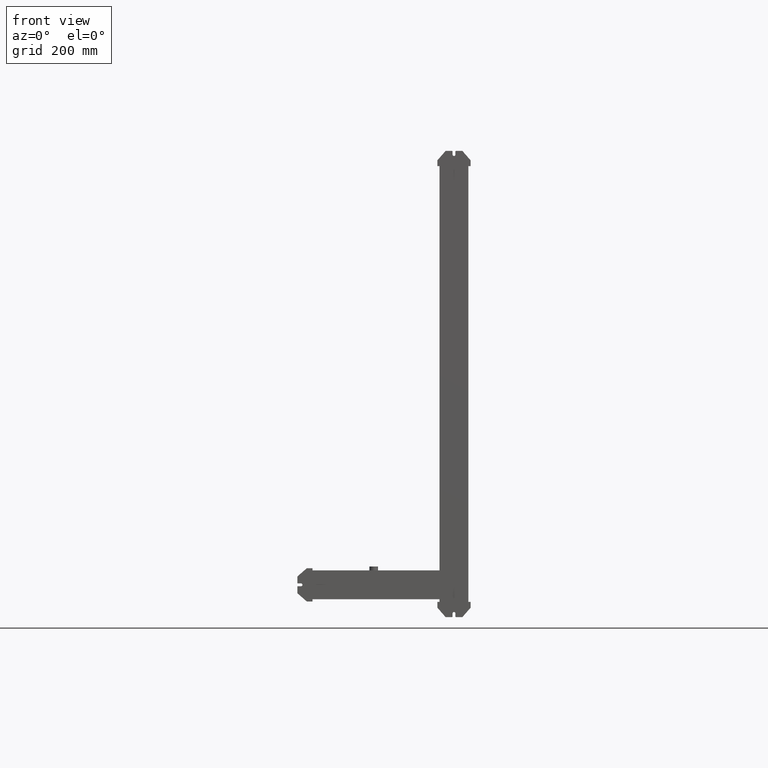
[diagram: clean part render]
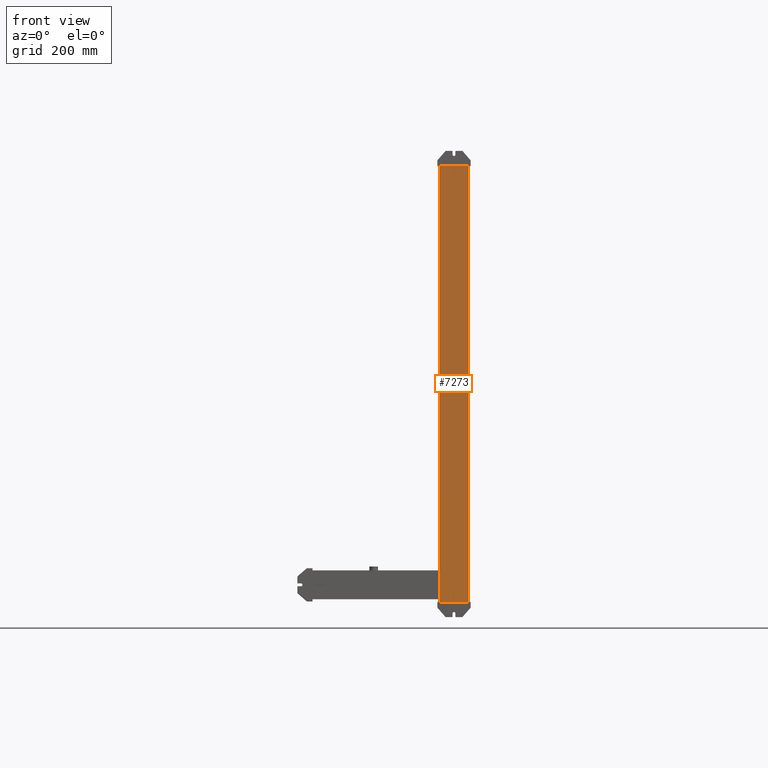
[diagram: same view with one face highlighted and labeled with its STEP entity id]
A machine part, front view. The second image highlights one B-rep face of the part: STEP entity #7273.
In plain terms, the highlighted planar face has unit normal (0, -1, 0).
Its self-contained STEP definition (entity closure, byte-faithful):
#7234=CARTESIAN_POINT('Axis2P3D Location',(0.,0.,0.)) ;
#7239=CARTESIAN_POINT('Line Origine',(0.,0.,453.)) ;
#7243=CARTESIAN_POINT('Vertex',(0.,0.,0.)) ;
#7245=CARTESIAN_POINT('Vertex',(0.,0.,906.)) ;
#7248=CARTESIAN_POINT('Line Origine',(30.,0.,0.)) ;
#7252=CARTESIAN_POINT('Vertex',(60.,0.,0.)) ;
#7255=CARTESIAN_POINT('Line Origine',(60.,0.,453.)) ;
#7259=CARTESIAN_POINT('Vertex',(60.,0.,906.)) ;
#7262=CARTESIAN_POINT('Line Origine',(30.,0.,906.)) ;
#7235=DIRECTION('Axis2P3D Direction',(0.,-1.,0.)) ;
#7236=DIRECTION('Axis2P3D XDirection',(1.,0.,0.)) ;
#7240=DIRECTION('Vector Direction',(0.,0.,1.)) ;
#7249=DIRECTION('Vector Direction',(1.,0.,0.)) ;
#7256=DIRECTION('Vector Direction',(0.,0.,1.)) ;
#7263=DIRECTION('Vector Direction',(1.,0.,0.)) ;
#7237=AXIS2_PLACEMENT_3D('Plane Axis2P3D',#7234,#7235,#7236) ;
#7268=ORIENTED_EDGE('',*,*,#7247,.F.) ;
#7269=ORIENTED_EDGE('',*,*,#7254,.T.) ;
#7270=ORIENTED_EDGE('',*,*,#7261,.T.) ;
#7271=ORIENTED_EDGE('',*,*,#7266,.F.) ;
#7241=VECTOR('Line Direction',#7240,1.) ;
#7250=VECTOR('Line Direction',#7249,1.) ;
#7257=VECTOR('Line Direction',#7256,1.) ;
#7264=VECTOR('Line Direction',#7263,1.) ;
#7273=ADVANCED_FACE('PartBody',(#7272),#7238,.T.) ;
#7247=EDGE_CURVE('',#7244,#7246,#7242,.T.) ;
#7254=EDGE_CURVE('',#7244,#7253,#7251,.T.) ;
#7261=EDGE_CURVE('',#7253,#7260,#7258,.T.) ;
#7266=EDGE_CURVE('',#7246,#7260,#7265,.T.) ;
#7267=EDGE_LOOP('',(#7268,#7269,#7270,#7271)) ;
#7272=FACE_OUTER_BOUND('',#7267,.T.) ;
#7242=LINE('Line',#7239,#7241) ;
#7251=LINE('Line',#7248,#7250) ;
#7258=LINE('Line',#7255,#7257) ;
#7265=LINE('Line',#7262,#7264) ;
#7238=PLANE('Plane',#7237) ;
#7244=VERTEX_POINT('',#7243) ;
#7246=VERTEX_POINT('',#7245) ;
#7253=VERTEX_POINT('',#7252) ;
#7260=VERTEX_POINT('',#7259) ;